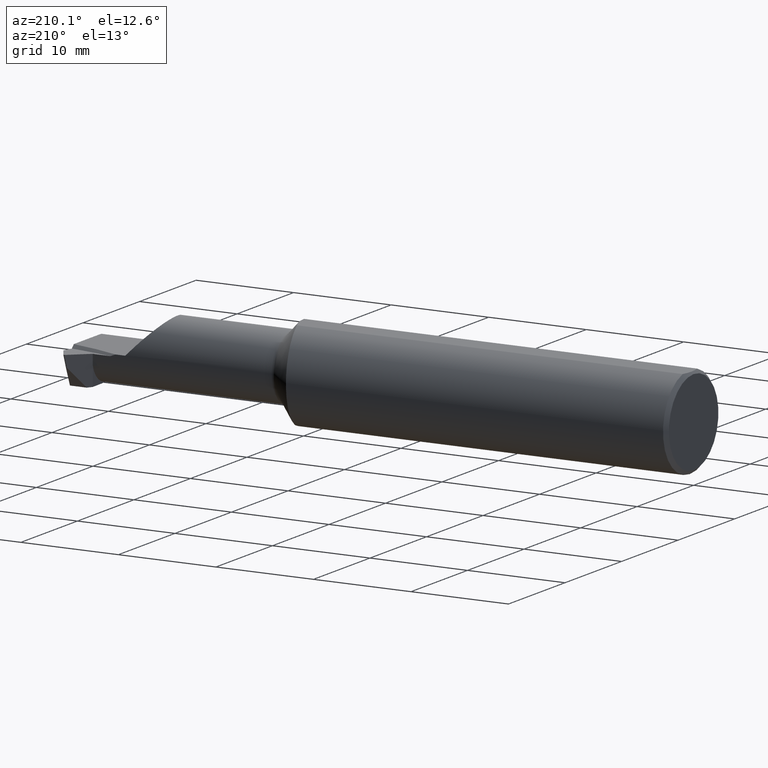
[diagram: clean part render]
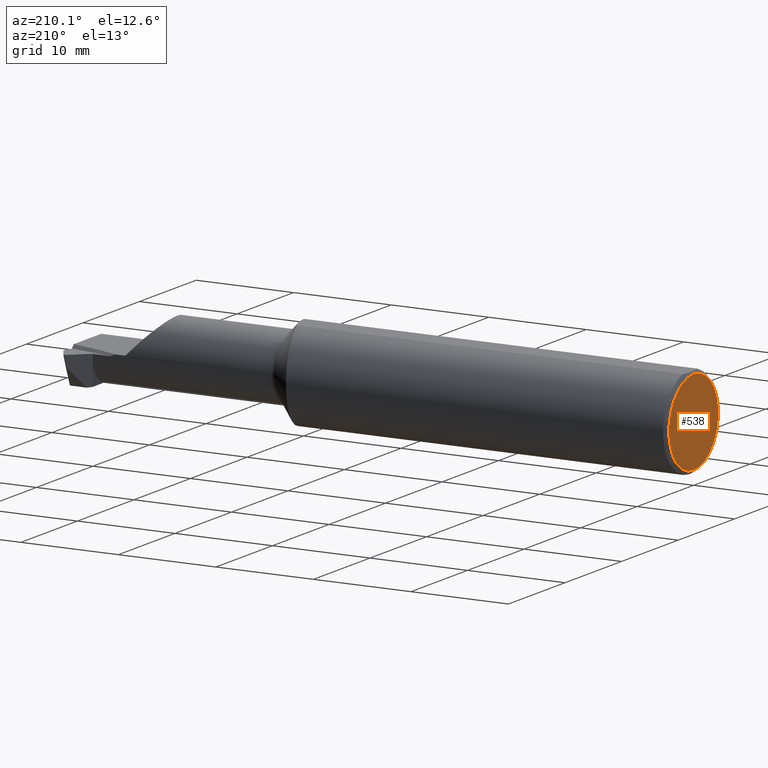
[diagram: same view with one face highlighted and labeled with its STEP entity id]
A machine part, auxiliary view. The second image highlights one B-rep face of the part: STEP entity #538.
In plain terms, the highlighted planar face has unit normal (1, 0, 0).
Its self-contained STEP definition (entity closure, byte-faithful):
#29 = DIRECTION ( 'NONE',  ( 0.000000000000000000, 0.000000000000000000, -1.000000000000000000 ) ) ;
#76 = DIRECTION ( 'NONE',  ( -1.000000000000000000, -0.000000000000000000, -0.000000000000000000 ) ) ;
#183 = AXIS2_PLACEMENT_3D ( 'NONE', #683, #265, #270 ) ;
#229 = EDGE_LOOP ( 'NONE', ( #890, #824 ) ) ;
#247 = CARTESIAN_POINT ( 'NONE',  ( 0.000000000000000000, 0.000000000000000000, 0.000000000000000000 ) ) ;
#258 = CARTESIAN_POINT ( 'NONE',  ( 0.000000000000000000, 0.000000000000000000, 0.000000000000000000 ) ) ;
#265 = DIRECTION ( 'NONE',  ( -1.000000000000000000, -0.000000000000000000, -0.000000000000000000 ) ) ;
#270 = DIRECTION ( 'NONE',  ( 0.000000000000000000, 0.000000000000000000, -1.000000000000000000 ) ) ;
#392 = AXIS2_PLACEMENT_3D ( 'NONE', #258, #605, #29 ) ;
#423 = PLANE ( 'NONE',  #392 ) ;
#455 = EDGE_CURVE ( 'NONE', #997, #878, #1060, .T. ) ;
#458 = CIRCLE ( 'NONE', #183, 0.1723499999999993371 ) ;
#474 = CARTESIAN_POINT ( 'NONE',  ( 0.000000000000000000, 0.000000000000000000, -0.1723499999999993371 ) ) ;
#519 = FACE_OUTER_BOUND ( 'NONE', #229, .T. ) ;
#538 = ADVANCED_FACE ( 'NONE', ( #519 ), #423, .F. ) ;
#545 = CARTESIAN_POINT ( 'NONE',  ( 0.000000000000000000, 2.202527268266510421E-17, 0.1723499999999993371 ) ) ;
#568 = AXIS2_PLACEMENT_3D ( 'NONE', #247, #76, #749 ) ;
#605 = DIRECTION ( 'NONE',  ( 1.000000000000000000, 0.000000000000000000, 0.000000000000000000 ) ) ;
#683 = CARTESIAN_POINT ( 'NONE',  ( 0.000000000000000000, 0.000000000000000000, 0.000000000000000000 ) ) ;
#749 = DIRECTION ( 'NONE',  ( 0.000000000000000000, 0.000000000000000000, -1.000000000000000000 ) ) ;
#824 = ORIENTED_EDGE ( 'NONE', *, *, #455, .T. ) ;
#878 = VERTEX_POINT ( 'NONE', #474 ) ;
#890 = ORIENTED_EDGE ( 'NONE', *, *, #973, .T. ) ;
#973 = EDGE_CURVE ( 'NONE', #878, #997, #458, .T. ) ;
#997 = VERTEX_POINT ( 'NONE', #545 ) ;
#1060 = CIRCLE ( 'NONE', #568, 0.1723499999999993371 ) ;